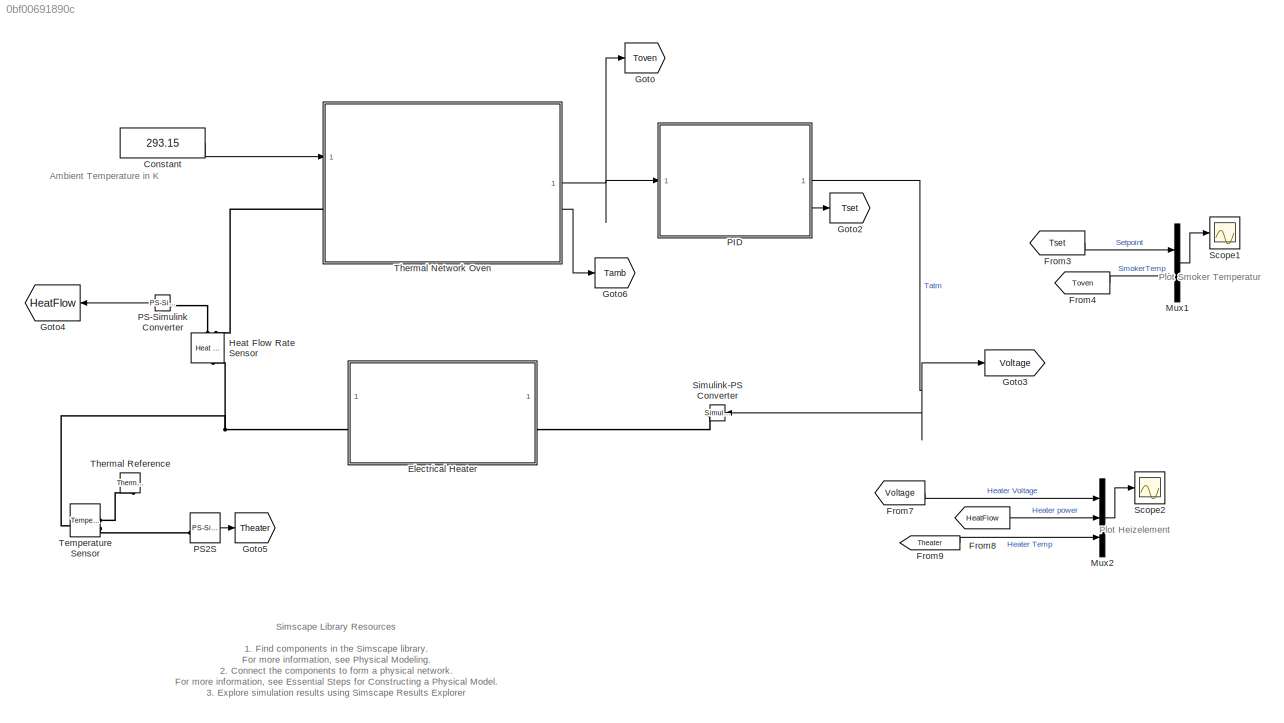
MODEL slx_0bf00691890c
KIND model
CONFIG AbsTol = 1e-3
CONFIG EnableMultiTasking = off
CONFIG FixedStep = 5
CONFIG MaxStep = auto
CONFIG MinStep = auto
CONFIG RelTol = 1e-3
CONFIG SampleTimeConstraint = Unconstrained
CONFIG SolverName = FixedStepAuto
CONFIG StartTime = 0.0
CONFIG StopTime = 3000
BLOCK [Constant] Constant
  Value = 293.15
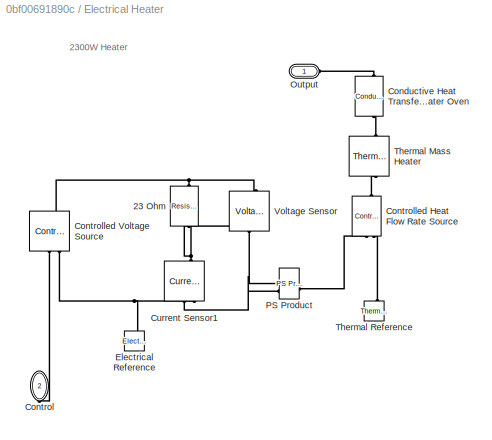
BLOCK [SubSystem] Electrical Heater
BLOCK [Reference] Electrical Heater/23 Ohm  REF=fl_lib/Electrical/Electrical Elements/Resistor
  NameLocation = left
  SourceBlock = fl_lib/Electrical/Electrical Elements/Resistor
  SourceType = Resistor
BLOCK [Reference] Electrical Heater/Conductive Heat Transfer Heater Oven  REF=fl_lib/Thermal/Thermal Elements/Conductive Heat
Transfer
  NameLocation = right
  SourceBlock = fl_lib/Thermal/Thermal Elements/Conductive Heat\nTransfer
  SourceType = Conductive Heat\nTransfer
BLOCK [PMIOPort] Electrical Heater/Control
  NameLocation = right
  Port = 2
  Side = Right
  Tag = PMCPort
BLOCK [Reference] Electrical Heater/Controlled Heat Flow Rate Source  REF=fl_lib/Thermal/Thermal Sources/Controlled Heat Flow
Rate Source
  NameLocation = right
  SourceBlock = fl_lib/Thermal/Thermal Sources/Controlled Heat Flow\nRate Source
  SourceType = Controlled Heat Flow\nRate Source
BLOCK [Reference] Electrical Heater/Controlled Voltage Source  REF=fl_lib/Electrical/Electrical Sources/Controlled Voltage
Source
  NameLocation = right
  SourceBlock = fl_lib/Electrical/Electrical Sources/Controlled Voltage\nSource
  SourceType = Controlled Voltage\nSource
BLOCK [Reference] Electrical Heater/Current Sensor1  REF=fl_lib/Electrical/Electrical Sensors/Current Sensor
  NameLocation = left
  SourceBlock = fl_lib/Electrical/Electrical Sensors/Current Sensor
  SourceType = Current Sensor
BLOCK [Reference] Electrical Heater/Electrical Reference  REF=fl_lib/Electrical/Electrical Elements/Electrical Reference
  LibrarySourceBlock = ee_lib/Connectors &\nReferences/Electrical Reference
  NameLocation = right
  SourceBlock = fl_lib/Electrical/Electrical Elements/Electrical Reference
  SourceType = Electrical Reference
BLOCK [PMIOPort] Electrical Heater/Output
  Side = Left
BLOCK [Reference] Electrical Heater/PS Product  REF=fl_lib/Physical Signals/Functions/PS Product
  SourceBlock = fl_lib/Physical Signals/Functions/PS Product
  SourceType = PS Product
BLOCK [Reference] Electrical Heater/Thermal Mass Heater  REF=fl_lib/Thermal/Thermal Elements/Thermal Mass
  NameLocation = right
  SourceBlock = fl_lib/Thermal/Thermal Elements/Thermal Mass
  SourceType = Thermal Mass
BLOCK [Reference] Electrical Heater/Thermal Reference  REF=fl_lib/Thermal/Thermal Elements/Thermal Reference
  NameLocation = right
  SourceBlock = fl_lib/Thermal/Thermal Elements/Thermal Reference
  SourceType = Thermal Reference
BLOCK [Reference] Electrical Heater/Voltage Sensor  REF=fl_lib/Electrical/Electrical Sensors/Voltage Sensor
  NameLocation = right
  SourceBlock = fl_lib/Electrical/Electrical Sensors/Voltage Sensor
  SourceType = Voltage Sensor
BLOCK [From] From3
  GotoTag = Tset
BLOCK [From] From4
  GotoTag = Toven
BLOCK [From] From7
  GotoTag = Voltage
BLOCK [From] From8
  GotoTag = HeatFlow
BLOCK [From] From9
  GotoTag = Theater
BLOCK [Goto] Goto
  GotoTag = Toven
BLOCK [Goto] Goto2
  GotoTag = Tset
BLOCK [Goto] Goto3
  GotoTag = Voltage
BLOCK [Goto] Goto4
  GotoTag = HeatFlow
  NameLocation = top
BLOCK [Goto] Goto5
  GotoTag = Theater
BLOCK [Goto] Goto6
  GotoTag = Tamb
BLOCK [Reference] Heat Flow Rate Sensor  REF=fl_lib/Thermal/Thermal Sensors/Heat Flow Rate
Sensor
  NameLocation = right
  SourceBlock = fl_lib/Thermal/Thermal Sensors/Heat Flow Rate\nSensor
  SourceType = Heat Flow Rate\nSensor
BLOCK [Mux] Mux1
  DisplayOption = bar
  Inputs = 2
BLOCK [Mux] Mux2
  DisplayOption = bar
  Inputs = 3
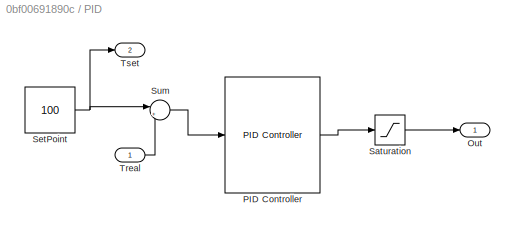
BLOCK [SubSystem] PID
BLOCK [Outport] PID/Out
BLOCK [Reference] PID/PID Controller  REF=slpidlib/PID Controller
  LibrarySourceBlock = simulink/Continuous/PID Controller
  SourceBlock = slpidlib/PID Controller
  SourceType = PID 1dof
BLOCK [Saturate] PID/Saturation
  LowerLimit = 1
  UpperLimit = 230
BLOCK [Constant] PID/SetPoint
  OutMax = [250]
  Value = 100
BLOCK [Sum] PID/Sum
  Inputs = |+-
BLOCK [Inport] PID/Treal
BLOCK [Outport] PID/Tset
  Port = 2
BLOCK [Reference] PS-Simulink Converter  REF=nesl_utility/PS-Simulink
Converter
  NameLocation = top
  SourceBlock = nesl_utility/PS-Simulink\nConverter
  SourceType = PS-Simulink\nConverter
BLOCK [Reference] PS2S  REF=nesl_utility/PS-Simulink
Converter
  SourceBlock = nesl_utility/PS-Simulink\nConverter
  SourceType = PS-Simulink\nConverter
BLOCK [Scope] Scope1
  Floating = off
  NumInputPorts = 1
  ScopeSpecificationString = Simulink.scopes.TimeScopeBlockCfg('CurrentConfiguration', extmgr.ConfigurationSet(extmgr.Configuration('Core','General UI',true,'FigureColor',[0 0 0]),extmgr.Configuration('Core','Source UI',true),extmgr.Configuration('Sources','WiredSimulink',true,'DataLoggingVariableName','ScopeData1'),extmgr.Configuration('Visuals','Time Domain',true,'SerializedDisplays',{struct('MinYLimReal','6.53243','MaxYLim...<+1844ch>
BLOCK [Scope] Scope2
  Floating = off
  NumInputPorts = 1
  ScopeSpecificationString = Simulink.scopes.TimeScopeBlockCfg('CurrentConfiguration', extmgr.ConfigurationSet(extmgr.Configuration('Core','General UI',true,'FigureColor',[0 0 0]),extmgr.Configuration('Core','Source UI',true),extmgr.Configuration('Sources','WiredSimulink',true,'DataLoggingVariableName','ScopeData1'),extmgr.Configuration('Visuals','Time Domain',true,'SerializedDisplays',{struct('MinYLimReal','-281.9885','MaxYL...<+1875ch>
BLOCK [Reference] Simulink-PS Converter  REF=nesl_utility/Simulink-PS
Converter
  NameLocation = top
  SourceBlock = nesl_utility/Simulink-PS\nConverter
  SourceType = Simulink-PS\nConverter
BLOCK [Reference] Temperature Sensor  REF=fl_lib/Thermal/Thermal Sensors/Temperature Sensor
  SourceBlock = fl_lib/Thermal/Thermal Sensors/Temperature Sensor
  SourceType = Temperature Sensor
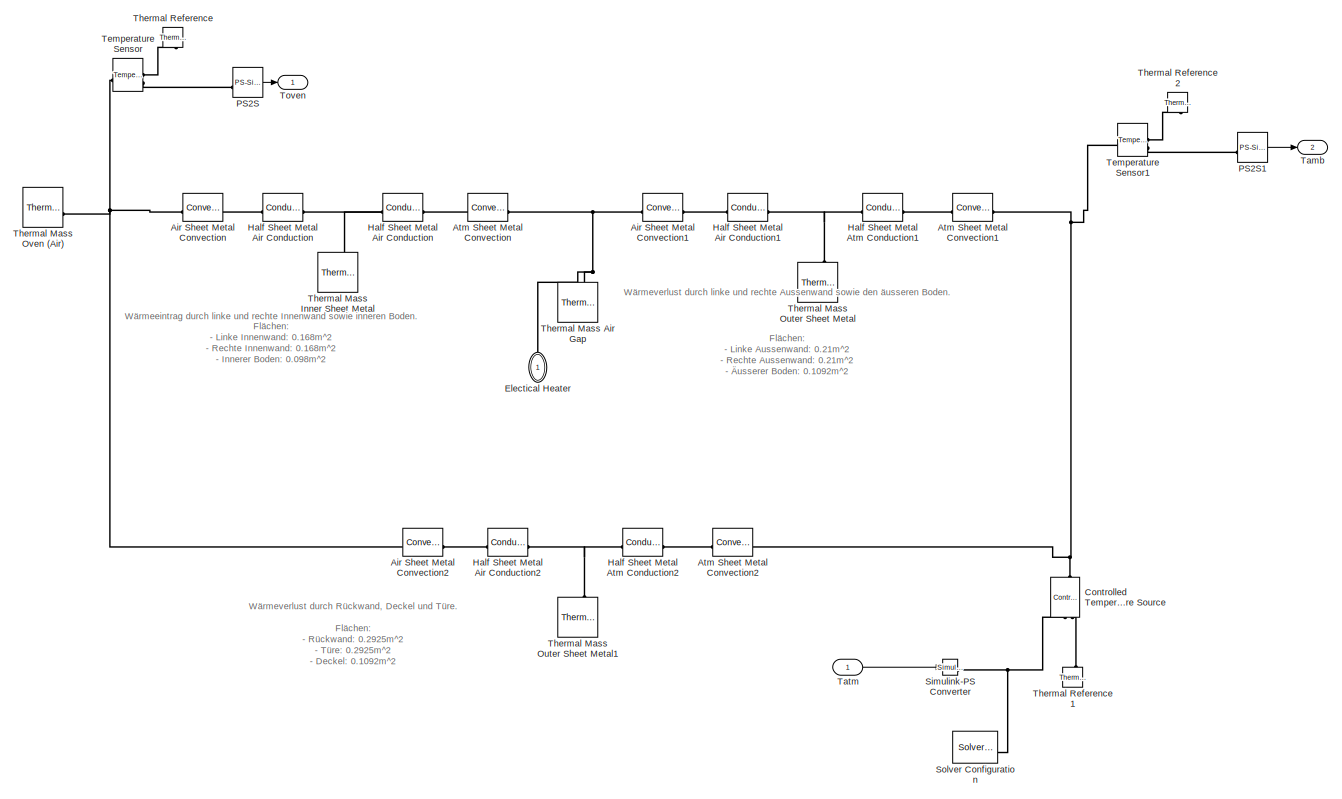
[diagram: Thermal Network Oven - part 1/2, most of the canvas]
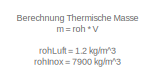
[diagram: Thermal Network Oven - part 2/2, top left region]
BLOCK [SubSystem] Thermal Network Oven
BLOCK [Reference] Thermal Network Oven/Air Sheet Metal Convection  REF=fl_lib/Thermal/Thermal Elements/Convective Heat
Transfer
  NameLocation = top
  SourceBlock = fl_lib/Thermal/Thermal Elements/Convective Heat\nTransfer
  SourceType = Convective Heat\nTransfer
BLOCK [Reference] Thermal Network Oven/Air Sheet Metal Convection1  REF=fl_lib/Thermal/Thermal Elements/Convective Heat
Transfer
  SourceBlock = fl_lib/Thermal/Thermal Elements/Convective Heat\nTransfer
  SourceType = Convective Heat\nTransfer
BLOCK [Reference] Thermal Network Oven/Air Sheet Metal Convection2  REF=fl_lib/Thermal/Thermal Elements/Convective Heat
Transfer
  SourceBlock = fl_lib/Thermal/Thermal Elements/Convective Heat\nTransfer
  SourceType = Convective Heat\nTransfer
BLOCK [Reference] Thermal Network Oven/Atm Sheet Metal Convection  REF=fl_lib/Thermal/Thermal Elements/Convective Heat
Transfer
  NameLocation = top
  SourceBlock = fl_lib/Thermal/Thermal Elements/Convective Heat\nTransfer
  SourceType = Convective Heat\nTransfer
BLOCK [Reference] Thermal Network Oven/Atm Sheet Metal Convection1  REF=fl_lib/Thermal/Thermal Elements/Convective Heat
Transfer
  SourceBlock = fl_lib/Thermal/Thermal Elements/Convective Heat\nTransfer
  SourceType = Convective Heat\nTransfer
BLOCK [Reference] Thermal Network Oven/Atm Sheet Metal Convection2  REF=fl_lib/Thermal/Thermal Elements/Convective Heat
Transfer
  SourceBlock = fl_lib/Thermal/Thermal Elements/Convective Heat\nTransfer
  SourceType = Convective Heat\nTransfer
BLOCK [Reference] Thermal Network Oven/Controlled Temperature Source  REF=fl_lib/Thermal/Thermal Sources/Controlled
Temperature Source
  NameLocation = right
  SourceBlock = fl_lib/Thermal/Thermal Sources/Controlled\nTemperature Source
  SourceType = Controlled\nTemperature Source
BLOCK [PMIOPort] Thermal Network Oven/Electical Heater
  NameLocation = right
  Side = Left
  Tag = PMCPort
BLOCK [Reference] Thermal Network Oven/Half Sheet Metal Air Conduction  REF=fl_lib/Thermal/Thermal Elements/Conductive Heat
Transfer
  NameLocation = top
  SourceBlock = fl_lib/Thermal/Thermal Elements/Conductive Heat\nTransfer
  SourceType = Conductive Heat\nTransfer
BLOCK [Reference] Thermal Network Oven/Half Sheet Metal Air Conduction1  REF=fl_lib/Thermal/Thermal Elements/Conductive Heat
Transfer
  SourceBlock = fl_lib/Thermal/Thermal Elements/Conductive Heat\nTransfer
  SourceType = Conductive Heat\nTransfer
BLOCK [Reference] Thermal Network Oven/Half Sheet Metal Air Conduction2  REF=fl_lib/Thermal/Thermal Elements/Conductive Heat
Transfer
  SourceBlock = fl_lib/Thermal/Thermal Elements/Conductive Heat\nTransfer
  SourceType = Conductive Heat\nTransfer
BLOCK [Reference] Thermal Network Oven/Half Sheet Metal Atm Conduction1  REF=fl_lib/Thermal/Thermal Elements/Conductive Heat
Transfer
  SourceBlock = fl_lib/Thermal/Thermal Elements/Conductive Heat\nTransfer
  SourceType = Conductive Heat\nTransfer
BLOCK [Reference] Thermal Network Oven/Half Sheet Metal Atm Conduction2  REF=fl_lib/Thermal/Thermal Elements/Conductive Heat
Transfer
  SourceBlock = fl_lib/Thermal/Thermal Elements/Conductive Heat\nTransfer
  SourceType = Conductive Heat\nTransfer
BLOCK [Reference] Thermal Network Oven/PS2S  REF=nesl_utility/PS-Simulink
Converter
  SourceBlock = nesl_utility/PS-Simulink\nConverter
  SourceType = PS-Simulink\nConverter
BLOCK [Reference] Thermal Network Oven/PS2S1  REF=nesl_utility/PS-Simulink
Converter
  SourceBlock = nesl_utility/PS-Simulink\nConverter
  SourceType = PS-Simulink\nConverter
BLOCK [Reference] Thermal Network Oven/Simulink-PS Converter  REF=nesl_utility/Simulink-PS
Converter
  SourceBlock = nesl_utility/Simulink-PS\nConverter
  SourceType = Simulink-PS\nConverter
BLOCK [Reference] Thermal Network Oven/Solver Configuration  REF=nesl_utility/Solver
Configuration
  SourceBlock = nesl_utility/Solver\nConfiguration
  SourceType = Solver\nConfiguration
BLOCK [Outport] Thermal Network Oven/Tamb
  Port = 2
  VectorParamsAs1DForOutWhenUnconnected = off
BLOCK [Inport] Thermal Network Oven/Tatm
BLOCK [Reference] Thermal Network Oven/Temperature Sensor  REF=fl_lib/Thermal/Thermal Sensors/Temperature Sensor
  SourceBlock = fl_lib/Thermal/Thermal Sensors/Temperature Sensor
  SourceType = Temperature Sensor
BLOCK [Reference] Thermal Network Oven/Temperature Sensor1  REF=fl_lib/Thermal/Thermal Sensors/Temperature Sensor
  SourceBlock = fl_lib/Thermal/Thermal Sensors/Temperature Sensor
  SourceType = Temperature Sensor
BLOCK [Reference] Thermal Network Oven/Thermal Mass Air Gap  REF=fl_lib/Thermal/Thermal Elements/Thermal Mass
  NameLocation = right
  SourceBlock = fl_lib/Thermal/Thermal Elements/Thermal Mass
  SourceType = Thermal Mass
BLOCK [Reference] Thermal Network Oven/Thermal Mass Inner Sheet Metal  REF=fl_lib/Thermal/Thermal Elements/Thermal Mass
  NameLocation = right
  SourceBlock = fl_lib/Thermal/Thermal Elements/Thermal Mass
  SourceType = Thermal Mass
BLOCK [Reference] Thermal Network Oven/Thermal Mass Outer Sheet Metal  REF=fl_lib/Thermal/Thermal Elements/Thermal Mass
  NameLocation = right
  SourceBlock = fl_lib/Thermal/Thermal Elements/Thermal Mass
  SourceType = Thermal Mass
BLOCK [Reference] Thermal Network Oven/Thermal Mass Outer Sheet Metal1  REF=fl_lib/Thermal/Thermal Elements/Thermal Mass
  NameLocation = right
  SourceBlock = fl_lib/Thermal/Thermal Elements/Thermal Mass
  SourceType = Thermal Mass
BLOCK [Reference] Thermal Network Oven/Thermal Mass Oven (Air)  REF=fl_lib/Thermal/Thermal Elements/Thermal Mass
  SourceBlock = fl_lib/Thermal/Thermal Elements/Thermal Mass
  SourceType = Thermal Mass
BLOCK [Reference] Thermal Network Oven/Thermal Reference  REF=fl_lib/Thermal/Thermal Elements/Thermal Reference
  NameLocation = left
  SourceBlock = fl_lib/Thermal/Thermal Elements/Thermal Reference
  SourceType = Thermal Reference
BLOCK [Reference] Thermal Network Oven/Thermal Reference1  REF=fl_lib/Thermal/Thermal Elements/Thermal Reference
  NameLocation = right
  SourceBlock = fl_lib/Thermal/Thermal Elements/Thermal Reference
  SourceType = Thermal Reference
BLOCK [Reference] Thermal Network Oven/Thermal Reference2  REF=fl_lib/Thermal/Thermal Elements/Thermal Reference
  NameLocation = left
  SourceBlock = fl_lib/Thermal/Thermal Elements/Thermal Reference
  SourceType = Thermal Reference
BLOCK [Outport] Thermal Network Oven/Toven
  VectorParamsAs1DForOutWhenUnconnected = off
BLOCK [Reference] Thermal Reference  REF=fl_lib/Thermal/Thermal Elements/Thermal Reference
  NameLocation = left
  SourceBlock = fl_lib/Thermal/Thermal Elements/Thermal Reference
  SourceType = Thermal Reference
ANNOTATION (root): 1. Find components in the Simscape library . For more information, see Physical Modeling . 2. Connect the components to form a physical network. For more information, see Essential Steps for Constructing a Physical Model . 3. Explore simulation results using Simscape Results Explorer
ANNOTATION (root): Ambient Temperature in K
ANNOTATION (root): Plot Heizelement
ANNOTATION (root): Plot Smoker Temperatur
ANNOTATION (root): Simscape Library Resources
ANNOTATION Electrical Heater: 2300W Heater
ANNOTATION Thermal Network Oven: Berechnung Thermische Masse m = roh * V rohLuft = 1.2 kg/m^3 rohInox = 7900 kg/m^3
ANNOTATION Thermal Network Oven: Wärmeeintrag durch linke und rechte Innenwand sowie inneren Boden. Flächen: - Linke Innenwand: 0.168m^2 - Rechte Innenwand: 0.168m^2 - Innerer Boden: 0.098m^2 Total: 0.434m^2 Volumen: 4.34e-4 m^3 Masse: 3.4286kg
ANNOTATION Thermal Network Oven: Wärmeverlust durch Rückwand, Deckel und Türe. Flächen: - Rückwand: 0.2925m^2 - Türe: 0.2925m^2 - Deckel: 0.1092m^2 Total: 0.6942m^2 Volumen: 6.942e-4 m^3 Masse: 5.48418kg
ANNOTATION Thermal Network Oven: Wärmeverlust durch linke und rechte Aussenwand sowie den äusseren Boden. Flächen: - Linke Aussenwand: 0.21m^2 - Rechte Aussenwand: 0.21m^2 - Äusserer Boden: 0.1092m^2 Total: 0.5292m^2 Volumen: 5.292 e-4 m^3 Masse: 4.18068kg
LINE Constant:1 -> Thermal Network Oven:1
LINE From3:1 -> Mux1:1
LINE From4:1 -> Mux1:2
LINE From7:1 -> Mux2:1
LINE From8:1 -> Mux2:2
LINE From9:1 -> Mux2:3
LINE Mux1:1 -> Scope1:1
LINE Mux2:1 -> Scope2:1
LINE PID/PID Controller:1 -> PID/Saturation:1
LINE PID/Saturation:1 -> PID/Out:1
NET PID/SetPoint:1 -> PID/Sum:1, PID/Tset:1
LINE PID/Sum:1 -> PID/PID Controller:1
LINE PID/Treal:1 -> PID/Sum:2
NET PID:1 -> Goto3:1, Simulink-PS Converter:1
LINE PID:2 -> Goto2:1
LINE PS-Simulink Converter:1 -> Goto4:1
LINE PS2S:1 -> Goto5:1
LINE Thermal Network Oven/PS2S1:1 -> Thermal Network Oven/Tamb:1
LINE Thermal Network Oven/PS2S:1 -> Thermal Network Oven/Toven:1
LINE Thermal Network Oven/Tatm:1 -> Thermal Network Oven/Simulink-PS Converter:1
NET Thermal Network Oven:1 -> Goto:1, PID:1
LINE Thermal Network Oven:2 -> Goto6:1
PNET net1: Electrical Heater/23 Ohm:LConn1 -- Electrical Heater/Controlled Voltage Source:LConn1 -- Electrical Heater/Voltage Sensor:LConn1
PNET net2: Electrical Heater/23 Ohm:RConn1 -- Electrical Heater/Current Sensor1:LConn1 -- Electrical Heater/Voltage Sensor:RConn2
PLINE Electrical Heater/Conductive Heat Transfer Heater Oven:LConn1 -- Electrical Heater/Thermal Mass Heater:LConn1
PLINE Electrical Heater/Conductive Heat Transfer Heater Oven:RConn1 -- Electrical Heater/Output:RConn1
PLINE Electrical Heater/Control:RConn1 -- Electrical Heater/Controlled Voltage Source:RConn1
PLINE Electrical Heater/Controlled Heat Flow Rate Source:LConn1 -- Electrical Heater/Thermal Mass Heater:RConn1
PLINE Electrical Heater/Controlled Heat Flow Rate Source:RConn1 -- Electrical Heater/PS Product:RConn1
PLINE Electrical Heater/Controlled Heat Flow Rate Source:RConn2 -- Electrical Heater/Thermal Reference:LConn1
PNET net3: Electrical Heater/Controlled Voltage Source:RConn2 -- Electrical Heater/Current Sensor1:RConn2 -- Electrical Heater/Electrical Reference:LConn1
PLINE Electrical Heater/Current Sensor1:RConn1 -- Electrical Heater/PS Product:LConn2
PLINE Electrical Heater/PS Product:LConn1 -- Electrical Heater/Voltage Sensor:RConn1
PNET net4: Electrical Heater:LConn1 -- Heat Flow Rate Sensor:LConn1 -- Temperature Sensor:LConn1
PLINE Electrical Heater:RConn1 -- Simulink-PS Converter:RConn1
PLINE Heat Flow Rate Sensor:RConn1 -- PS-Simulink Converter:LConn1
PLINE Heat Flow Rate Sensor:RConn2 -- Thermal Network Oven:LConn1
PLINE PS2S:LConn1 -- Temperature Sensor:RConn2
PLINE Temperature Sensor:RConn1 -- Thermal Reference:LConn1
PNET net5: Thermal Network Oven/Air Sheet Metal Convection1:LConn1 -- Thermal Network Oven/Atm Sheet Metal Convection:LConn1 -- Thermal Network Oven/Electical Heater:RConn1 -- Thermal Network Oven/Thermal Mass Air Gap:LConn1
PLINE Thermal Network Oven/Air Sheet Metal Convection1:RConn1 -- Thermal Network Oven/Half Sheet Metal Air Conduction1:LConn1
PNET net6: Thermal Network Oven/Air Sheet Metal Convection2:LConn1 -- Thermal Network Oven/Air Sheet Metal Convection:RConn1 -- Thermal Network Oven/Temperature Sensor:LConn1 -- Thermal Network Oven/Thermal Mass Oven (Air):LConn1
PLINE Thermal Network Oven/Air Sheet Metal Convection2:RConn1 -- Thermal Network Oven/Half Sheet Metal Air Conduction2:LConn1
PNET net7: Thermal Network Oven/Air Sheet Metal Convection:LConn1 -- Thermal Network Oven/Atm Sheet Metal Convection:RConn1 -- Thermal Network Oven/Half Sheet Metal Air Conduction:LConn1 -- Thermal Network Oven/Half Sheet Metal Air Conduction:RConn1 -- Thermal Network Oven/Thermal Mass Inner Sheet Metal:LConn1
PLINE Thermal Network Oven/Atm Sheet Metal Convection1:LConn1 -- Thermal Network Oven/Half Sheet Metal Atm Conduction1:RConn1
PNET net8: Thermal Network Oven/Atm Sheet Metal Convection1:RConn1 -- Thermal Network Oven/Atm Sheet Metal Convection2:RConn1 -- Thermal Network Oven/Controlled Temperature Source:LConn1 -- Thermal Network Oven/Temperature Sensor1:LConn1
PLINE Thermal Network Oven/Atm Sheet Metal Convection2:LConn1 -- Thermal Network Oven/Half Sheet Metal Atm Conduction2:RConn1
PNET net9: Thermal Network Oven/Controlled Temperature Source:RConn1 -- Thermal Network Oven/Simulink-PS Converter:RConn1 -- Thermal Network Oven/Solver Configuration:RConn1
PLINE Thermal Network Oven/Controlled Temperature Source:RConn2 -- Thermal Network Oven/Thermal Reference1:LConn1
PNET net10: Thermal Network Oven/Half Sheet Metal Air Conduction1:RConn1 -- Thermal Network Oven/Half Sheet Metal Atm Conduction1:LConn1 -- Thermal Network Oven/Thermal Mass Outer Sheet Metal:LConn1
PNET net11: Thermal Network Oven/Half Sheet Metal Air Conduction2:RConn1 -- Thermal Network Oven/Half Sheet Metal Atm Conduction2:LConn1 -- Thermal Network Oven/Thermal Mass Outer Sheet Metal1:LConn1
PLINE Thermal Network Oven/PS2S1:LConn1 -- Thermal Network Oven/Temperature Sensor1:RConn2
PLINE Thermal Network Oven/PS2S:LConn1 -- Thermal Network Oven/Temperature Sensor:RConn2
PLINE Thermal Network Oven/Temperature Sensor1:RConn1 -- Thermal Network Oven/Thermal Reference2:LConn1
PLINE Thermal Network Oven/Temperature Sensor:RConn1 -- Thermal Network Oven/Thermal Reference:LConn1
note: NET lines group one-source signal fan-out (src -> all destinations, sorted); 1:1 wires keep LINE; PNET lines group multi-terminal physical nets as a canonical sorted terminal list (undirected conserving connections); 2-terminal nets keep the pairwise PLINE form
